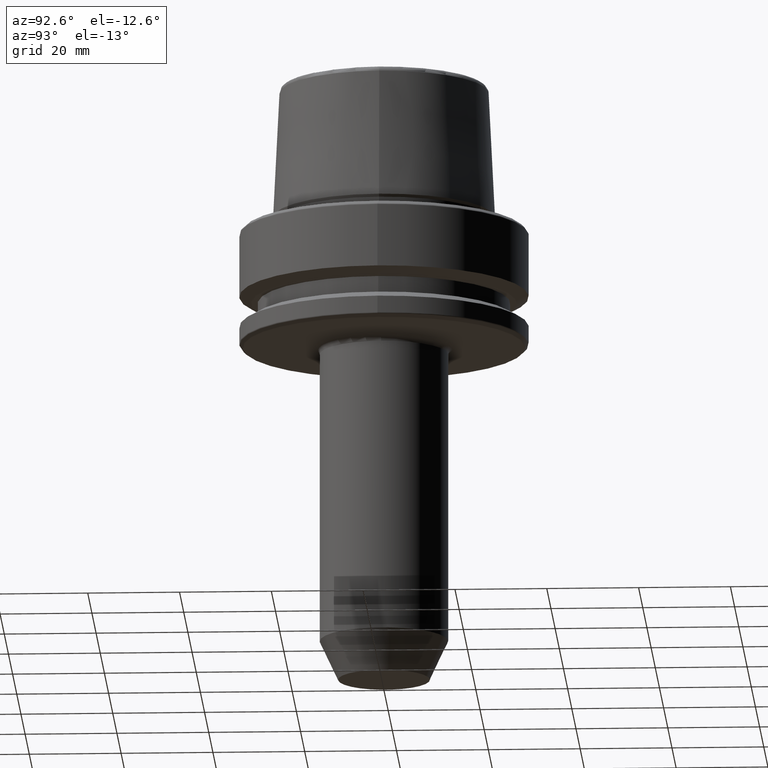
[diagram: clean part render]
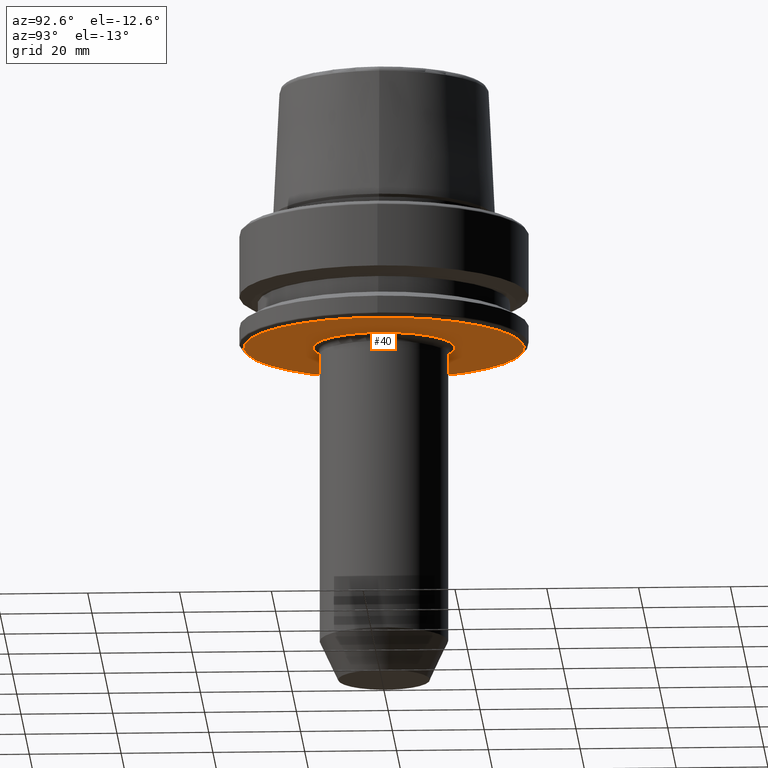
[diagram: same view with one face highlighted and labeled with its STEP entity id]
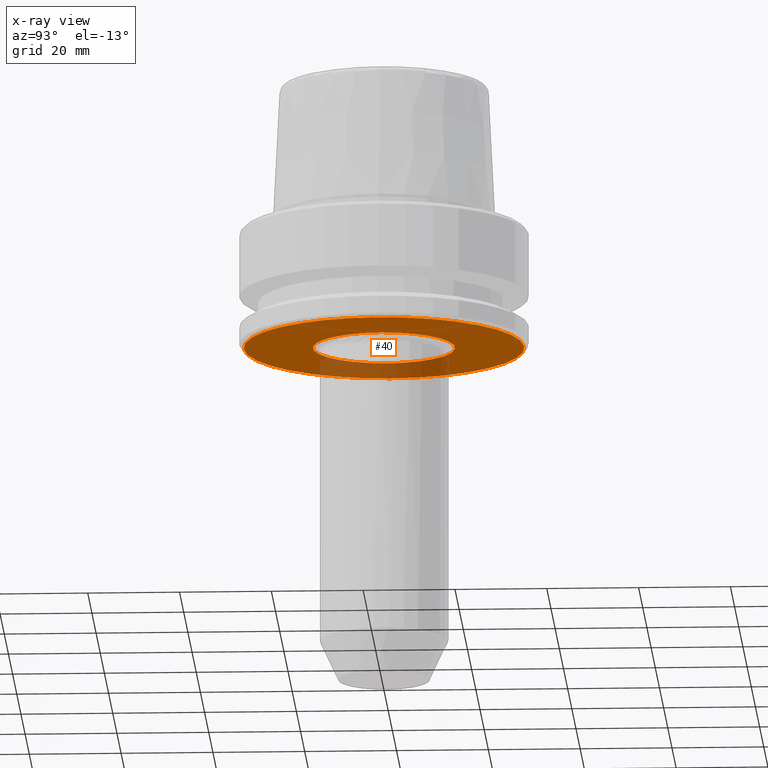
[diagram: x-ray of the same camera — body ghosted, the highlighted face saturated]
A machine part, auxiliary view. The second image highlights one B-rep face of the part: STEP entity #40.
The next image is the same camera in x-ray: the body ghosted, the highlighted face saturated — about 21% of this face is hidden behind the body in this view.
In plain terms, the highlighted planar face has unit normal (0, -0, 1).
Its self-contained STEP definition (entity closure, byte-faithful):
#31 = DIRECTION ( 'NONE',  ( 0.0000000000000000000, -0.0000000000000000000, 1.000000000000000000 ) ) ;
#32 = DIRECTION ( 'NONE',  ( -0.0000000000000000000, -0.0000000000000000000, 1.000000000000000000 ) ) ;
#40 = ADVANCED_FACE ( 'NONE', ( #473, #390 ), #1032, .F. ) ;
#64 = DIRECTION ( 'NONE',  ( 1.000000000000000000, 0.0000000000000000000, 0.0000000000000000000 ) ) ;
#117 = EDGE_CURVE ( 'NONE', #870, #382, #876, .T. ) ;
#132 = CARTESIAN_POINT ( 'NONE',  ( 15.49999999999999800, 8.688372561518441400E-017, -26.00000000000001100 ) ) ;
#143 = DIRECTION ( 'NONE',  ( 1.000000000000000000, 0.0000000000000000000, 0.0000000000000000000 ) ) ;
#181 = CARTESIAN_POINT ( 'NONE',  ( 30.53431457505076800, 0.0000000000000000000, -26.00000000000001100 ) ) ;
#330 = AXIS2_PLACEMENT_3D ( 'NONE', #910, #1125, #64 ) ;
#333 = CARTESIAN_POINT ( 'NONE',  ( 0.0000000000000000000, 8.688372561518441400E-017, -26.00000000000001100 ) ) ;
#345 = AXIS2_PLACEMENT_3D ( 'NONE', #333, #1027, #438 ) ;
#382 = VERTEX_POINT ( 'NONE', #667 ) ;
#390 = FACE_OUTER_BOUND ( 'NONE', #852, .T. ) ;
#429 = CARTESIAN_POINT ( 'NONE',  ( 0.0000000000000000000, 0.0000000000000000000, -26.00000000000001100 ) ) ;
#436 = VERTEX_POINT ( 'NONE', #807 ) ;
#438 = DIRECTION ( 'NONE',  ( 1.000000000000000000, 0.0000000000000000000, 0.0000000000000000000 ) ) ;
#468 = ORIENTED_EDGE ( 'NONE', *, *, #740, .F. ) ;
#473 = FACE_BOUND ( 'NONE', #1158, .T. ) ;
#481 = CIRCLE ( 'NONE', #345, 15.49999999999999800 ) ;
#499 = AXIS2_PLACEMENT_3D ( 'NONE', #429, #1104, #523 ) ;
#523 = DIRECTION ( 'NONE',  ( 1.000000000000000000, 0.0000000000000000000, 0.0000000000000000000 ) ) ;
#546 = ORIENTED_EDGE ( 'NONE', *, *, #117, .T. ) ;
#552 = VERTEX_POINT ( 'NONE', #181 ) ;
#618 = AXIS2_PLACEMENT_3D ( 'NONE', #639, #32, #756 ) ;
#639 = CARTESIAN_POINT ( 'NONE',  ( 0.0000000000000000000, 0.0000000000000000000, -26.00000000000001100 ) ) ;
#667 = CARTESIAN_POINT ( 'NONE',  ( -15.49999999999999800, 1.985086264293581700E-015, -26.00000000000001100 ) ) ;
#740 = EDGE_CURVE ( 'NONE', #436, #552, #979, .T. ) ;
#756 = DIRECTION ( 'NONE',  ( 1.000000000000000000, 0.0000000000000000000, 0.0000000000000000000 ) ) ;
#804 = EDGE_CURVE ( 'NONE', #382, #870, #481, .T. ) ;
#807 = CARTESIAN_POINT ( 'NONE',  ( -30.53431457505076800, 3.756694181974139400E-015, -26.00000000000001100 ) ) ;
#809 = ORIENTED_EDGE ( 'NONE', *, *, #893, .F. ) ;
#852 = EDGE_LOOP ( 'NONE', ( #809, #468 ) ) ;
#870 = VERTEX_POINT ( 'NONE', #132 ) ;
#876 = CIRCLE ( 'NONE', #330, 15.49999999999999800 ) ;
#893 = EDGE_CURVE ( 'NONE', #552, #436, #971, .T. ) ;
#910 = CARTESIAN_POINT ( 'NONE',  ( 0.0000000000000000000, 8.688372561518441400E-017, -26.00000000000001100 ) ) ;
#942 = CARTESIAN_POINT ( 'NONE',  ( 0.0000000000000000000, 30.53431457505076800, -26.00000000000001100 ) ) ;
#971 = CIRCLE ( 'NONE', #618, 30.53431457505076800 ) ;
#979 = CIRCLE ( 'NONE', #499, 30.53431457505076800 ) ;
#1023 = AXIS2_PLACEMENT_3D ( 'NONE', #942, #31, #143 ) ;
#1027 = DIRECTION ( 'NONE',  ( -0.0000000000000000000, -0.0000000000000000000, 1.000000000000000000 ) ) ;
#1032 = PLANE ( 'NONE',  #1023 ) ;
#1104 = DIRECTION ( 'NONE',  ( -0.0000000000000000000, -0.0000000000000000000, 1.000000000000000000 ) ) ;
#1125 = DIRECTION ( 'NONE',  ( -0.0000000000000000000, -0.0000000000000000000, 1.000000000000000000 ) ) ;
#1158 = EDGE_LOOP ( 'NONE', ( #546, #1170 ) ) ;
#1170 = ORIENTED_EDGE ( 'NONE', *, *, #804, .T. ) ;